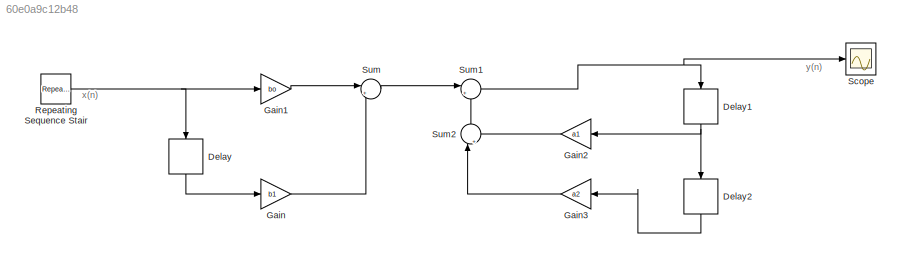
MODEL slx_60e0a9c12b48
KIND model
CONFIG AbsTol = auto
CONFIG EnableMultiTasking = off
CONFIG FixedStep = auto
CONFIG MaxStep = auto
CONFIG MinStep = auto
CONFIG RelTol = 1e-3
CONFIG SampleTimeConstraint = Unconstrained
CONFIG SolverName = VariableStepAuto
CONFIG StartTime = 0.0
CONFIG StopTime = 10.0
WORKSPACE source: mxarray member
WORKSPACE a1 = 0.5
WORKSPACE a2 = -0.25
WORKSPACE b1 = 0.4
WORKSPACE bo = 1
BLOCK [Delay] Delay
  DelayLength = 1
  InputPortMap = u0
  NameLocation = left
  Ports = [1, 1]
BLOCK [Delay] Delay1
  DelayLength = 1
  InputPortMap = u0
  NameLocation = left
  Ports = [1, 1]
BLOCK [Delay] Delay2
  DelayLength = 1
  InputPortMap = u0
  NameLocation = left
  Ports = [1, 1]
BLOCK [Gain] Gain
  Gain = b1
BLOCK [Gain] Gain1
  Gain = bo
BLOCK [Gain] Gain2
  Gain = a1
BLOCK [Gain] Gain3
  Gain = a2
BLOCK [Reference] Repeating Sequence Stair  REF=simulink/Sources/Repeating
Sequence
Stair
  Ports = [0, 1]
  SourceBlock = simulink/Sources/Repeating\nSequence\nStair
  SourceProductBaseCode = SL
  SourceType = Repeating Sequence Stair
BLOCK [Scope] Scope
  Floating = off
  NumInputPorts = 1
  Ports = [1]
  ScopeSpecificationString = Simulink.scopes.TimeScopeBlockCfg('CurrentConfiguration', extmgr.ConfigurationSet(extmgr.Configuration('Core','General UI',true),extmgr.Configuration('Core','Source UI',true),extmgr.Configuration('Sources','WiredSimulink',true),extmgr.Configuration('Visuals','Time Domain',true,'SerializedDisplays',{struct('MinYLimReal','2.6875','MaxYLimReal','5.8125','YLabelReal','','MinYLimMag','2.6875','MaxYLimM...<+1343ch>
BLOCK [Sum] Sum
  Inputs = |++
  Ports = [2, 1]
BLOCK [Sum] Sum1
  Inputs = |++
  Ports = [2, 1]
BLOCK [Sum] Sum2
  Inputs = |++
  NameLocation = right
  Ports = [2, 1]
ANNOTATION (root): x(n)
ANNOTATION (root): y(n)
NET Delay1:1 -> Delay2:1, Gain2:1
LINE Delay2:1 -> Gain3:1
LINE Delay:1 -> Gain:1
LINE Gain1:1 -> Sum:1
LINE Gain2:1 -> Sum2:2
LINE Gain3:1 -> Sum2:1
LINE Gain:1 -> Sum:2
NET Repeating Sequence Stair:1 -> Delay:1, Gain1:1
NET Sum1:1 -> Delay1:1, Scope:1
LINE Sum2:1 -> Sum1:2
LINE Sum:1 -> Sum1:1
note: NET lines group one-source signal fan-out (src -> all destinations, sorted); 1:1 wires keep LINE
